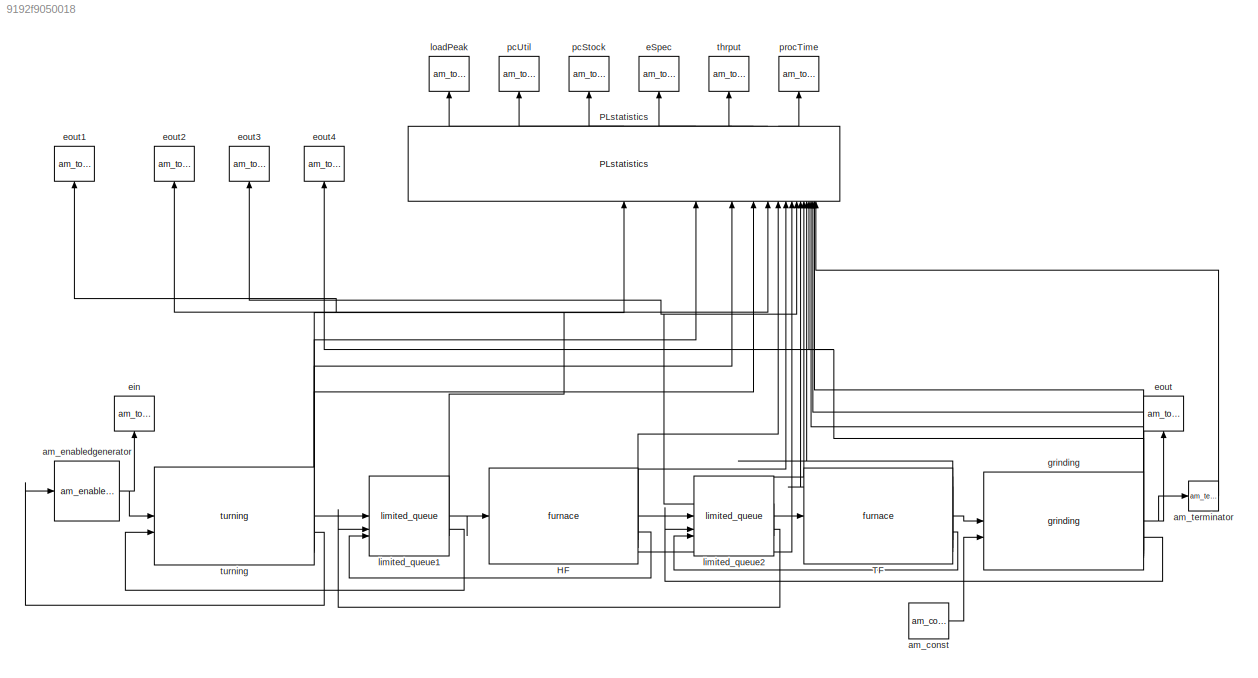
MODEL slx_9192f9050018
KIND model
CONFIG AbsTol = auto
CONFIG EnableMultiTasking = off
CONFIG FixedStep = auto
CONFIG MaxStep = auto
CONFIG MinStep = auto
CONFIG RelTol = 1e-3
CONFIG SampleTimeConstraint = Unconstrained
CONFIG SolverName = VariableStepAuto
CONFIG StartTime = 0.0
CONFIG StopTime = 10.0
BLOCK [Reference] HF  REF=ProductionLineLib_CM/furnace
  SourceBlock = ProductionLineLib_CM/furnace
BLOCK [Reference] PLstatistics  REF=ProductionLineLib_CM/PLstatistics
  NameLocation = right
  SourceBlock = ProductionLineLib_CM/PLstatistics
BLOCK [Reference] TF  REF=ProductionLineLib_CM/furnace
  SourceBlock = ProductionLineLib_CM/furnace
BLOCK [Reference] am_const  REF=NSA_DEVS_SOURCES/am_const
  SourceBlock = NSA_DEVS_SOURCES/am_const
  SourceProductName = Sources
  SourceType = Const
BLOCK [Reference] am_enabledgenerator  REF=NSA_DEVS_SOURCES/am_enabledgenerator
  SourceBlock = NSA_DEVS_SOURCES/am_enabledgenerator
  SourceProductName = Sources
  SourceType = EnabledGenerator
BLOCK [Reference] am_terminator  REF=NSA_DEVS_LOGISTICS/am_terminator
  SourceBlock = NSA_DEVS_LOGISTICS/am_terminator
  SourceProductName = Logistics
  SourceType = Terminator
BLOCK [Reference] eSpec  REF=NSA_DEVS_SINKS/am_toworkspace
  NameLocation = top
  SourceBlock = NSA_DEVS_SINKS/am_toworkspace
  SourceProductName = Sinks
  SourceType = ToWorkspace
BLOCK [Reference] ein  REF=NSA_DEVS_SINKS/am_toworkspace
  NameLocation = right
  SourceBlock = NSA_DEVS_SINKS/am_toworkspace
  SourceProductName = Sinks
  SourceType = ToWorkspace
BLOCK [Reference] eout  REF=NSA_DEVS_SINKS/am_toworkspace
  NameLocation = right
  SourceBlock = NSA_DEVS_SINKS/am_toworkspace
  SourceProductName = Sinks
  SourceType = ToWorkspace
BLOCK [Reference] eout1  REF=NSA_DEVS_SINKS/am_toworkspace
  NameLocation = right
  SourceBlock = NSA_DEVS_SINKS/am_toworkspace
  SourceProductName = Sinks
  SourceType = ToWorkspace
BLOCK [Reference] eout2  REF=NSA_DEVS_SINKS/am_toworkspace
  NameLocation = right
  SourceBlock = NSA_DEVS_SINKS/am_toworkspace
  SourceProductName = Sinks
  SourceType = ToWorkspace
BLOCK [Reference] eout3  REF=NSA_DEVS_SINKS/am_toworkspace
  NameLocation = right
  SourceBlock = NSA_DEVS_SINKS/am_toworkspace
  SourceProductName = Sinks
  SourceType = ToWorkspace
BLOCK [Reference] eout4  REF=NSA_DEVS_SINKS/am_toworkspace
  NameLocation = right
  SourceBlock = NSA_DEVS_SINKS/am_toworkspace
  SourceProductName = Sinks
  SourceType = ToWorkspace
BLOCK [Reference] grinding  REF=ProductionLineLib_CM/grinding
  SourceBlock = ProductionLineLib_CM/grinding
BLOCK [Reference] limited_queue1  REF=ProductionLineLib_CM/limited_queue
  SourceBlock = ProductionLineLib_CM/limited_queue
BLOCK [Reference] limited_queue2  REF=ProductionLineLib_CM/limited_queue
  SourceBlock = ProductionLineLib_CM/limited_queue
BLOCK [Reference] loadPeak  REF=NSA_DEVS_SINKS/am_toworkspace
  NameLocation = top
  SourceBlock = NSA_DEVS_SINKS/am_toworkspace
  SourceProductName = Sinks
  SourceType = ToWorkspace
BLOCK [Reference] pcStock  REF=NSA_DEVS_SINKS/am_toworkspace
  NameLocation = top
  SourceBlock = NSA_DEVS_SINKS/am_toworkspace
  SourceProductName = Sinks
  SourceType = ToWorkspace
BLOCK [Reference] pcUtil  REF=NSA_DEVS_SINKS/am_toworkspace
  NameLocation = top
  SourceBlock = NSA_DEVS_SINKS/am_toworkspace
  SourceProductName = Sinks
  SourceType = ToWorkspace
BLOCK [Reference] procTime  REF=NSA_DEVS_SINKS/am_toworkspace
  NameLocation = top
  SourceBlock = NSA_DEVS_SINKS/am_toworkspace
  SourceProductName = Sinks
  SourceType = ToWorkspace
BLOCK [Reference] thrput  REF=NSA_DEVS_SINKS/am_toworkspace
  NameLocation = top
  SourceBlock = NSA_DEVS_SINKS/am_toworkspace
  SourceProductName = Sinks
  SourceType = ToWorkspace
BLOCK [Reference] turning  REF=ProductionLineLib_CM/turning
  SourceBlock = ProductionLineLib_CM/turning
LINE HF:1 -> limited_queue2:1
LINE HF:2 -> limited_queue1:3
LINE HF:3 -> PLstatistics:6
LINE HF:5 -> PLstatistics:7
LINE HF:7 -> PLstatistics:8
LINE PLstatistics:1 -> loadPeak:1
LINE PLstatistics:2 -> pcUtil:1
LINE PLstatistics:3 -> pcStock:1
LINE PLstatistics:4 -> eSpec:1
LINE PLstatistics:5 -> thrput:1
LINE PLstatistics:6 -> procTime:1
LINE TF:1 -> grinding:1
LINE TF:2 -> limited_queue2:3
LINE TF:3 -> PLstatistics:10
LINE TF:5 -> PLstatistics:11
LINE TF:7 -> PLstatistics:12
LINE am_const:1 -> grinding:2
NET am_enabledgenerator:1 -> ein:1, turning:1
LINE am_terminator:1 -> PLstatistics:17
NET grinding:1 -> am_terminator:1, eout:1
LINE grinding:2 -> limited_queue2:2
NET grinding:4 -> PLstatistics:13, eout4:1
LINE grinding:5 -> PLstatistics:14
LINE grinding:6 -> PLstatistics:15
LINE grinding:7 -> PLstatistics:16
LINE limited_queue1:1 -> HF:1
LINE limited_queue1:2 -> turning:2
NET limited_queue1:3 -> PLstatistics:5, eout2:1
LINE limited_queue2:1 -> TF:1
LINE limited_queue2:2 -> limited_queue1:2
NET limited_queue2:3 -> PLstatistics:9, eout3:1
LINE turning:1 -> limited_queue1:1
LINE turning:2 -> am_enabledgenerator:1
NET turning:4 -> PLstatistics:1, eout1:1
LINE turning:5 -> PLstatistics:2
LINE turning:6 -> PLstatistics:3
LINE turning:7 -> PLstatistics:4
note: NET lines group one-source signal fan-out (src -> all destinations, sorted); 1:1 wires keep LINE
